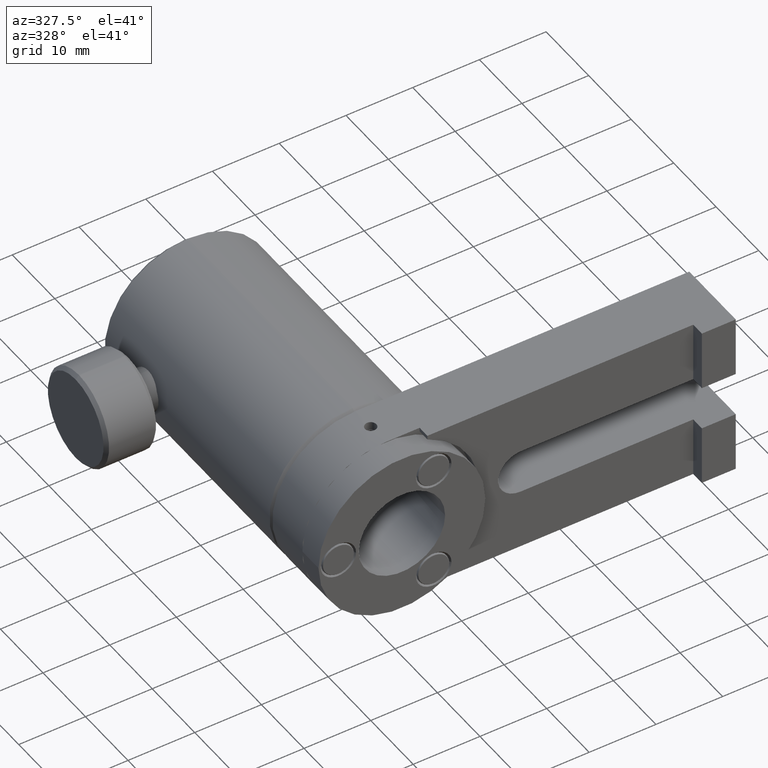
[diagram: clean part render]
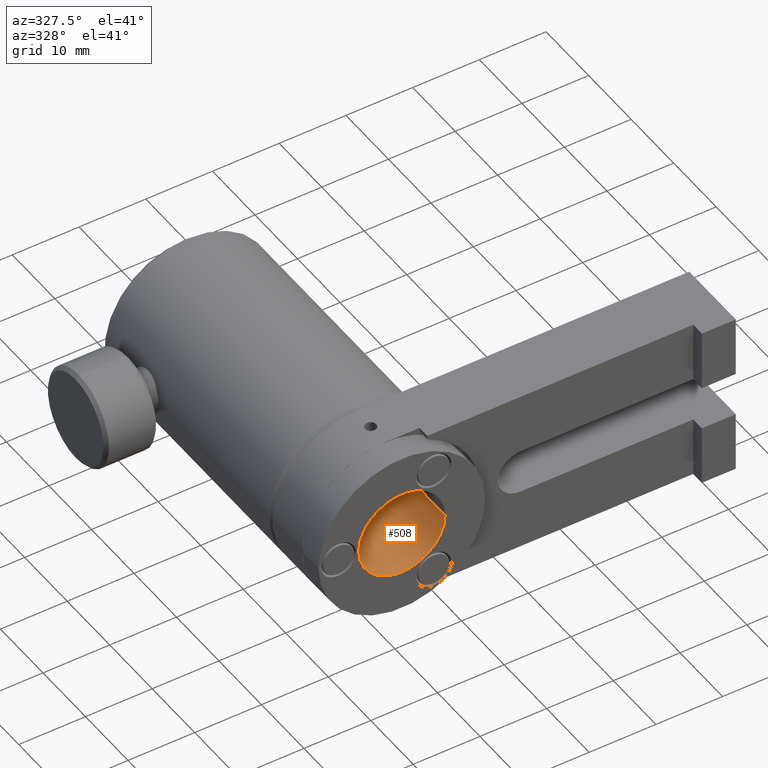
[diagram: same view with one face highlighted and labeled with its STEP entity id]
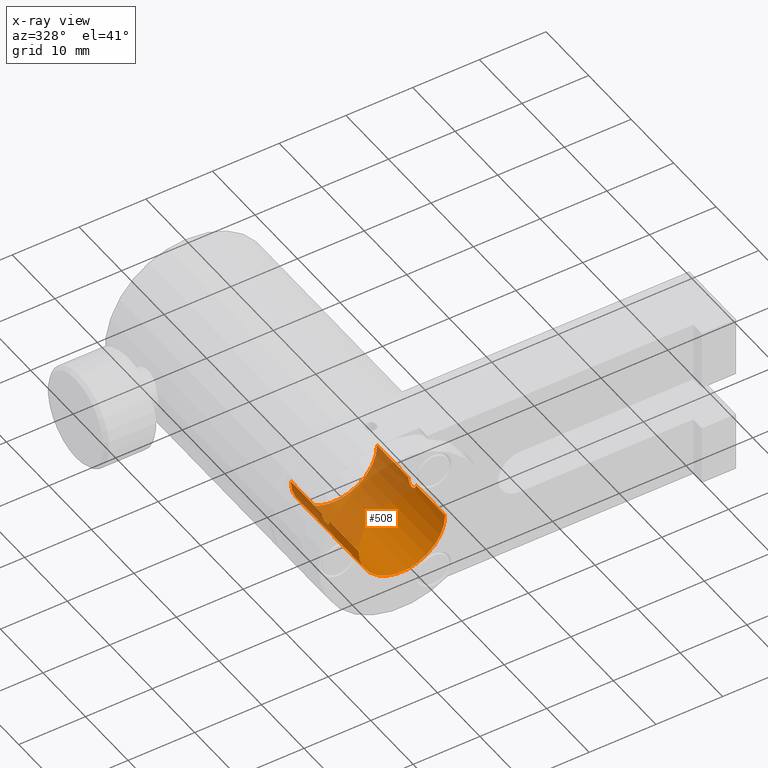
[diagram: x-ray of the same camera — body ghosted, the highlighted face saturated]
A machine part, auxiliary view. The second image highlights one B-rep face of the part: STEP entity #508.
The next image is the same camera in x-ray: the body ghosted, the highlighted face saturated — about 41% of this face is hidden behind the body in this view.
In plain terms, the highlighted cylindrical surface (partial cylindrical patch) has radius 6.477 mm, axis along (0, 1, 0).
Its self-contained STEP definition (entity closure, byte-faithful):
#48 = CARTESIAN_POINT ( 'NONE',  ( 10.53876676157147700, 2.573934787764893300, -0.8889999999996226500 ) ) ;
#53 = CARTESIAN_POINT ( 'NONE',  ( 10.60006664389137900, -5.173065212235105300, 3.765967690818601100E-013 ) ) ;
#88 = CARTESIAN_POINT ( 'NONE',  ( -2.292633473787409700, 2.573934787764406100, -0.8890000000090452200 ) ) ;
#107 = CARTESIAN_POINT ( 'NONE',  ( 10.55345449918673000, 2.126605324603221700, -0.7769426771632751400 ) ) ;
#123 = DIRECTION ( 'NONE',  ( -1.000000000000000000, 0.0000000000000000000, -3.552366734105304900E-014 ) ) ;
#130 = CARTESIAN_POINT ( 'NONE',  ( 10.59677290552062200, 1.708122718052808700, -0.2330062151327999000 ) ) ;
#162 = CARTESIAN_POINT ( 'NONE',  ( -2.295984162816225600, 2.340651364928596000, -0.8656286810699233000 ) ) ;
#206 = ORIENTED_EDGE ( 'NONE', *, *, #3671, .T. ) ;
#281 = ORIENTED_EDGE ( 'NONE', *, *, #1875, .T. ) ;
#348 = DIRECTION ( 'NONE',  ( -1.000000000000000000, 0.0000000000000000000, -3.552366734105304900E-014 ) ) ;
#412 = VERTEX_POINT ( 'NONE', #3359 ) ;
#458 = CARTESIAN_POINT ( 'NONE',  ( 10.58545291890307800, 3.350586348123523600, -0.4480192775091839100 ) ) ;
#508 = ADVANCED_FACE ( 'NONE', ( #3157 ), #1767, .F. ) ;
#524 = AXIS2_PLACEMENT_3D ( 'NONE', #975, #3347, #2197 ) ;
#543 = CIRCLE ( 'NONE', #524, 6.477000000000000300 ) ;
#599 = VERTEX_POINT ( 'NONE', #2569 ) ;
#638 = ORIENTED_EDGE ( 'NONE', *, *, #1097, .F. ) ;
#671 = CARTESIAN_POINT ( 'NONE',  ( 10.54211620212188700, 2.340669037810438900, -0.8656388751137895600 ) ) ;
#701 = VERTEX_POINT ( 'NONE', #1751 ) ;
#711 = CARTESIAN_POINT ( 'NONE',  ( -2.292633473787409700, 2.573934787764406100, -0.8890000000090452200 ) ) ;
#822 = ORIENTED_EDGE ( 'NONE', *, *, #927, .F. ) ;
#838 = EDGE_CURVE ( 'NONE', #3162, #599, #1467, .T. ) ;
#867 = AXIS2_PLACEMENT_3D ( 'NONE', #3408, #1883, #123 ) ;
#871 = CIRCLE ( 'NONE', #901, 6.477000000000000300 ) ;
#901 = AXIS2_PLACEMENT_3D ( 'NONE', #2996, #1211, #348 ) ;
#927 = EDGE_CURVE ( 'NONE', #3586, #3162, #2061, .T. ) ;
#944 = CARTESIAN_POINT ( 'NONE',  ( 10.60006664389255900, 3.462934787773486200, -6.101397910709939800E-013 ) ) ;
#948 = CARTESIAN_POINT ( 'NONE',  ( -2.353933356108614600, 1.684934787764897000, -0.1176538529103875300 ) ) ;
#959 = CARTESIAN_POINT ( 'NONE',  ( -2.353933356108578700, 3.462934787764639000, -0.1160834768496296900 ) ) ;
#960 = VECTOR ( 'NONE', #2257, 1000.000000000000000 ) ;
#975 = CARTESIAN_POINT ( 'NONE',  ( 4.123066643891380800, -5.173065212235105300, 1.457167719820518700E-013 ) ) ;
#989 = CARTESIAN_POINT ( 'NONE',  ( 10.56147533571487600, 2.027528870873269700, -0.7107759327374647600 ) ) ;
#997 = CARTESIAN_POINT ( 'NONE',  ( -2.307358124755231300, 3.021950876425407300, -0.7766531687620728000 ) ) ;
#1023 = EDGE_CURVE ( 'NONE', #1450, #3280, #1770, .T. ) ;
#1031 = CARTESIAN_POINT ( 'NONE',  ( -2.292633473787409700, 2.573934787764406100, -0.8890000000090452200 ) ) ;
#1097 = EDGE_CURVE ( 'NONE', #599, #701, #2925, .T. ) ;
#1122 = CARTESIAN_POINT ( 'NONE',  ( 10.60006664389138100, 10.82893478776489400, 3.765967690818602100E-013 ) ) ;
#1133 = VECTOR ( 'NONE', #3106, 1000.000000000000000 ) ;
#1138 = ORIENTED_EDGE ( 'NONE', *, *, #1023, .F. ) ;
#1202 = VERTEX_POINT ( 'NONE', #2577 ) ;
#1211 = DIRECTION ( 'NONE',  ( 0.0000000000000000000, 1.000000000000000000, 0.0000000000000000000 ) ) ;
#1222 = CARTESIAN_POINT ( 'NONE',  ( -2.353933356108619100, 1.684934787764897000, -8.433794940138831300E-014 ) ) ;
#1257 = CARTESIAN_POINT ( 'NONE',  ( 10.60006664389137900, 1.684934787764896800, 3.765967690818600100E-013 ) ) ;
#1266 = CARTESIAN_POINT ( 'NONE',  ( -2.331444659362095000, 3.285489353846622300, -0.5456630955220790300 ) ) ;
#1279 = CARTESIAN_POINT ( 'NONE',  ( 10.57746346457863300, 1.863518528122982700, -0.5468734685551206500 ) ) ;
#1335 = ORIENTED_EDGE ( 'NONE', *, *, #1688, .F. ) ;
#1345 = CARTESIAN_POINT ( 'NONE',  ( 10.56140071543600800, 3.119592693218902200, -0.7115586774158586500 ) ) ;
#1392 = DIRECTION ( 'NONE',  ( 0.0000000000000000000, 1.000000000000000000, 0.0000000000000000000 ) ) ;
#1450 = VERTEX_POINT ( 'NONE', #48 ) ;
#1467 = B_SPLINE_CURVE_WITH_KNOTS ( 'NONE', 3,
 ( #711, #3355, #1872, #997, #2465, #1266, #2450, #1554, #959, #3346 ),
 .UNSPECIFIED., .F., .F.,
 ( 4, 2, 2, 2, 4 ),
 ( 0.001391681021688470100, 0.001739436585783829900, 0.002087192149879189700, 0.002434947713974549900, 0.002782703278069909600 ),
 .UNSPECIFIED. ) ;
#1504 = EDGE_CURVE ( 'NONE', #3650, #3280, #1913, .T. ) ;
#1522 = EDGE_CURVE ( 'NONE', #412, #3586, #1868, .T. ) ;
#1554 = CARTESIAN_POINT ( 'NONE',  ( -2.350649786499912100, 3.439816570402018900, -0.2326646441831022900 ) ) ;
#1679 = ORIENTED_EDGE ( 'NONE', *, *, #1522, .F. ) ;
#1688 = EDGE_CURVE ( 'NONE', #3650, #412, #543, .T. ) ;
#1751 = CARTESIAN_POINT ( 'NONE',  ( -2.353933356108619100, 10.82893478776489400, -8.437002138594873400E-014 ) ) ;
#1767 = CYLINDRICAL_SURFACE ( 'NONE', #867, 6.477000000000000300 ) ;
#1770 = B_SPLINE_CURVE_WITH_KNOTS ( 'NONE', 3,
 ( #2763, #2451, #671, #107, #989, #1279, #1893, #130, #2181, #1257 ),
 .UNSPECIFIED., .F., .F.,
 ( 4, 2, 2, 2, 4 ),
 ( 0.002782701282795828300, 0.003130604781071176000, 0.003478508279346524200, 0.003826411777621871900, 0.004174315275897219600 ),
 .UNSPECIFIED. ) ;
#1858 = CARTESIAN_POINT ( 'NONE',  ( -2.339292157386634800, 1.797508938420797000, -0.4484079559468456300 ) ) ;
#1868 = LINE ( 'NONE', #2830, #2150 ) ;
#1872 = CARTESIAN_POINT ( 'NONE',  ( -2.295949454246609000, 2.806579105618423100, -0.8659013694511149600 ) ) ;
#1875 = EDGE_CURVE ( 'NONE', #3614, #1202, #2434, .T. ) ;
#1883 = DIRECTION ( 'NONE',  ( 0.0000000000000000000, 1.000000000000000000, 0.0000000000000000000 ) ) ;
#1893 = CARTESIAN_POINT ( 'NONE',  ( 10.58542393949339600, 1.797520211509415300, -0.4484449153770192500 ) ) ;
#1913 = LINE ( 'NONE', #2202, #1133 ) ;
#1914 = DIRECTION ( 'NONE',  ( 0.0000000000000000000, 1.000000000000000000, 0.0000000000000000000 ) ) ;
#1965 = CARTESIAN_POINT ( 'NONE',  ( 10.60006664389135400, 3.462934787764695400, -0.1160958163433591200 ) ) ;
#2061 = B_SPLINE_CURVE_WITH_KNOTS ( 'NONE', 3,
 ( #2728, #948, #3623, #1858, #2740, #3037, #2811, #162, #2218, #1031 ),
 .UNSPECIFIED., .F., .F.,
 ( 4, 2, 2, 2, 4 ),
 ( 3.116236741932552800E-020, 0.0003479202554221178000, 0.0006958405108442354900, 0.001043760766266352800, 0.001391681021688470100 ),
 .UNSPECIFIED. ) ;
#2150 = VECTOR ( 'NONE', #1914, 1000.000000000000000 ) ;
#2181 = CARTESIAN_POINT ( 'NONE',  ( 10.60006664389138300, 1.684934787764896600, -0.1175684763302868600 ) ) ;
#2197 = DIRECTION ( 'NONE',  ( -1.000000000000000000, 0.0000000000000000000, -3.552366734105304900E-014 ) ) ;
#2202 = CARTESIAN_POINT ( 'NONE',  ( 10.60006664389138100, 10.82893478776489400, 3.765967690818602100E-013 ) ) ;
#2218 = CARTESIAN_POINT ( 'NONE',  ( -2.292633473788650900, 2.457784676561466200, -0.8890000000000825000 ) ) ;
#2257 = DIRECTION ( 'NONE',  ( 0.0000000000000000000, 1.000000000000000000, 0.0000000000000000000 ) ) ;
#2373 = EDGE_LOOP ( 'NONE', ( #1335, #3022, #1138, #3785, #281, #206, #638, #3118, #822, #1679 ) ) ;
#2434 = LINE ( 'NONE', #1122, #2985 ) ;
#2450 = CARTESIAN_POINT ( 'NONE',  ( -2.339329763125724200, 3.350667793251574700, -0.4478503503887892300 ) ) ;
#2451 = CARTESIAN_POINT ( 'NONE',  ( 10.53876676157147500, 2.457801858734772100, -0.8889999999996226500 ) ) ;
#2465 = CARTESIAN_POINT ( 'NONE',  ( -2.315281350966472900, 3.119754024852675800, -0.7114348000705564800 ) ) ;
#2504 = CARTESIAN_POINT ( 'NONE',  ( 10.60006664389137900, 1.684934787764896800, 3.765967690818600100E-013 ) ) ;
#2522 = CARTESIAN_POINT ( 'NONE',  ( 10.57756416844688000, 3.285366602814805400, -0.5458232989944384900 ) ) ;
#2536 = CARTESIAN_POINT ( 'NONE',  ( 10.60006664389255900, 3.462934787773486200, -6.101397910709939800E-013 ) ) ;
#2569 = CARTESIAN_POINT ( 'NONE',  ( -2.353933356110145400, 3.462934787776023300, -1.396743876756858700E-012 ) ) ;
#2577 = CARTESIAN_POINT ( 'NONE',  ( 10.60006664389137900, 10.82893478776489400, 3.765967690818601100E-013 ) ) ;
#2598 = CARTESIAN_POINT ( 'NONE',  ( -2.353933356108619100, 10.82893478776489400, -8.437002138594873400E-014 ) ) ;
#2643 = B_SPLINE_CURVE_WITH_KNOTS ( 'NONE', 3,
 ( #2536, #1965, #3130, #458, #2522, #1345, #3419, #2852, #3380, #3141 ),
 .UNSPECIFIED., .F., .F.,
 ( 4, 2, 2, 2, 4 ),
 ( 0.001391679286587575300, 0.001739434785639638400, 0.002087190284691701700, 0.002434945783743765200, 0.002782701282795828300 ),
 .UNSPECIFIED. ) ;
#2728 = CARTESIAN_POINT ( 'NONE',  ( -2.353933356108619100, 1.684934787764897000, -8.433794940138831300E-014 ) ) ;
#2740 = CARTESIAN_POINT ( 'NONE',  ( -2.331321698447613900, 1.863600157849001800, -0.5469658185647463500 ) ) ;
#2763 = CARTESIAN_POINT ( 'NONE',  ( 10.53876676157147700, 2.573934787764893300, -0.8889999999996226500 ) ) ;
#2811 = CARTESIAN_POINT ( 'NONE',  ( -2.307317970403978300, 2.126660616765645000, -0.7769684580586236900 ) ) ;
#2830 = CARTESIAN_POINT ( 'NONE',  ( -2.353933356108619100, 10.82893478776489400, -8.437002138594873400E-014 ) ) ;
#2852 = CARTESIAN_POINT ( 'NONE',  ( 10.54208502654246600, 2.806598565896670600, -0.8658817823050213300 ) ) ;
#2925 = LINE ( 'NONE', #2598, #960 ) ;
#2985 = VECTOR ( 'NONE', #1392, 1000.000000000000000 ) ;
#2996 = CARTESIAN_POINT ( 'NONE',  ( 4.123066643891380800, 10.82893478776489400, 1.457167719820518700E-013 ) ) ;
#3022 = ORIENTED_EDGE ( 'NONE', *, *, #1504, .T. ) ;
#3037 = CARTESIAN_POINT ( 'NONE',  ( -2.315342460842459100, 2.027529981182903700, -0.7107662629022814000 ) ) ;
#3106 = DIRECTION ( 'NONE',  ( 0.0000000000000000000, 1.000000000000000000, 0.0000000000000000000 ) ) ;
#3118 = ORIENTED_EDGE ( 'NONE', *, *, #838, .F. ) ;
#3130 = CARTESIAN_POINT ( 'NONE',  ( 10.59678535939234600, 3.439836217591347300, -0.2326448646585872200 ) ) ;
#3141 = CARTESIAN_POINT ( 'NONE',  ( 10.53876676157147700, 2.573934787764893300, -0.8889999999996226500 ) ) ;
#3157 = FACE_OUTER_BOUND ( 'NONE', #2373, .T. ) ;
#3162 = VERTEX_POINT ( 'NONE', #88 ) ;
#3266 = EDGE_CURVE ( 'NONE', #3614, #1450, #2643, .T. ) ;
#3280 = VERTEX_POINT ( 'NONE', #2504 ) ;
#3346 = CARTESIAN_POINT ( 'NONE',  ( -2.353933356110145400, 3.462934787776023300, -1.396743876756858700E-012 ) ) ;
#3347 = DIRECTION ( 'NONE',  ( 0.0000000000000000000, 1.000000000000000000, 0.0000000000000000000 ) ) ;
#3355 = CARTESIAN_POINT ( 'NONE',  ( -2.292633473788652200, 2.690029918220298900, -0.8890000000000740600 ) ) ;
#3359 = CARTESIAN_POINT ( 'NONE',  ( -2.353933356108619100, -5.173065212235105300, -8.437002138594873400E-014 ) ) ;
#3380 = CARTESIAN_POINT ( 'NONE',  ( 10.53876676157147900, 2.690018313488122800, -0.8889999999996225400 ) ) ;
#3408 = CARTESIAN_POINT ( 'NONE',  ( 4.123066643891380800, 10.82893478776489400, 1.457167719820518700E-013 ) ) ;
#3419 = CARTESIAN_POINT ( 'NONE',  ( 10.55348117825176100, 3.021781324600053800, -0.7767349445126644500 ) ) ;
#3586 = VERTEX_POINT ( 'NONE', #1222 ) ;
#3614 = VERTEX_POINT ( 'NONE', #944 ) ;
#3623 = CARTESIAN_POINT ( 'NONE',  ( -2.350635326720939700, 1.708155931829948800, -0.2330960469464736800 ) ) ;
#3650 = VERTEX_POINT ( 'NONE', #53 ) ;
#3671 = EDGE_CURVE ( 'NONE', #1202, #701, #871, .T. ) ;
#3785 = ORIENTED_EDGE ( 'NONE', *, *, #3266, .F. ) ;